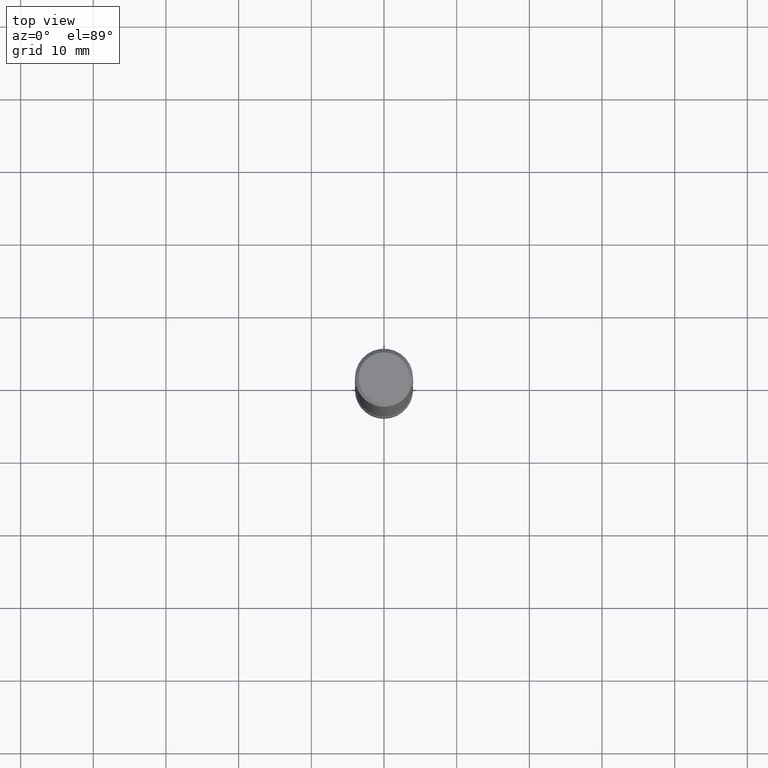
[diagram: clean part render]
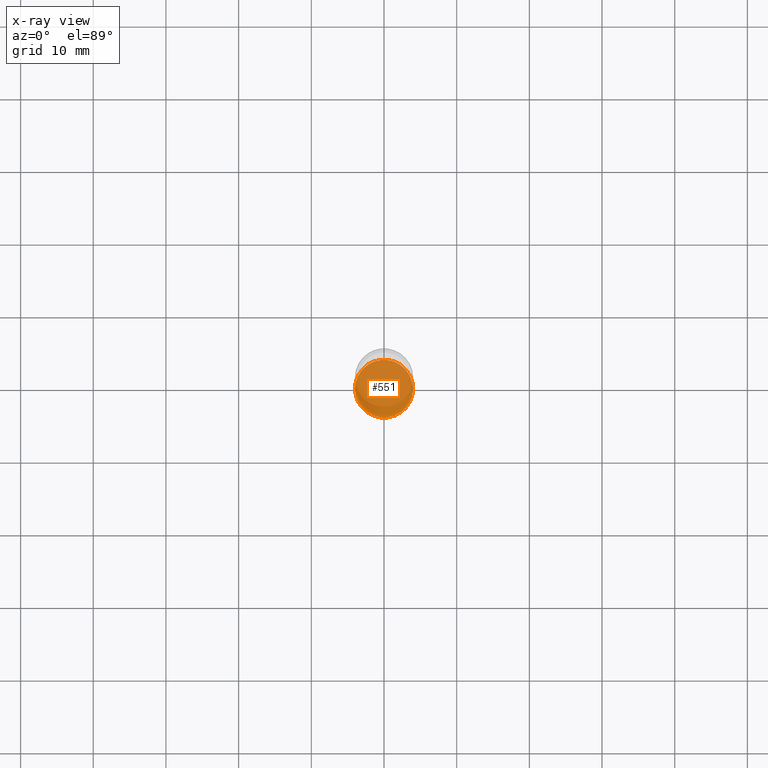
[diagram: x-ray — body ghosted, one internal face saturated and labeled with its STEP entity id]
A machine part, top view, then the same camera in x-ray: the body is ghosted and one INTERNAL B-rep face — a face not visible from any outside direction — is saturated and labeled: STEP entity #551.
In plain terms, the highlighted planar face has unit normal (0, -0, -1).
Its self-contained STEP definition (entity closure, byte-faithful):
#13 = CARTESIAN_POINT ( 'NONE',  ( 8.472571225909024784E-29, -1.209658624655596216E-14, -3.464599999999999902 ) ) ;
#25 = DIRECTION ( 'NONE',  ( -1.000000000000000000, 6.982962677686269866E-15, 0.000000000000000000 ) ) ;
#67 = DIRECTION ( 'NONE',  ( 2.445468806185136597E-29, -3.491481338843145583E-15, -1.000000000000000000 ) ) ;
#94 = CIRCLE ( 'NONE', #494, 0.1569999999999993345 ) ;
#161 = PLANE ( 'NONE',  #296 ) ;
#165 = CARTESIAN_POINT ( 'NONE',  ( 1.096325140396823951E-15, 0.1569999999999872609, -3.464600000000000346 ) ) ;
#200 = VERTEX_POINT ( 'NONE', #322 ) ;
#245 = ORIENTED_EDGE ( 'NONE', *, *, #416, .T. ) ;
#249 = EDGE_CURVE ( 'NONE', #200, #475, #263, .T. ) ;
#263 = CIRCLE ( 'NONE', #336, 0.1569999999999993345 ) ;
#278 = DIRECTION ( 'NONE',  ( 2.445468806185136597E-29, -3.491481338843145583E-15, -1.000000000000000000 ) ) ;
#293 = ORIENTED_EDGE ( 'NONE', *, *, #249, .T. ) ;
#296 = AXIS2_PLACEMENT_3D ( 'NONE', #165, #422, #463 ) ;
#322 = CARTESIAN_POINT ( 'NONE',  ( -0.1569999999999993345, -1.097908788540677166E-14, -3.464599999999999902 ) ) ;
#333 = FACE_OUTER_BOUND ( 'NONE', #473, .T. ) ;
#336 = AXIS2_PLACEMENT_3D ( 'NONE', #13, #67, #408 ) ;
#359 = CARTESIAN_POINT ( 'NONE',  ( 0.1569999999999993345, -1.319355264485483727E-14, -3.464599999999999902 ) ) ;
#408 = DIRECTION ( 'NONE',  ( -1.000000000000000000, 6.982962677686269866E-15, 0.000000000000000000 ) ) ;
#416 = EDGE_CURVE ( 'NONE', #475, #200, #94, .T. ) ;
#422 = DIRECTION ( 'NONE',  ( 2.438088387897960049E-29, -3.491481338843145188E-15, -1.000000000000000000 ) ) ;
#463 = DIRECTION ( 'NONE',  ( -1.000000000000000000, 6.982962677686265922E-15, -4.876176775795935793E-29 ) ) ;
#473 = EDGE_LOOP ( 'NONE', ( #245, #293 ) ) ;
#475 = VERTEX_POINT ( 'NONE', #359 ) ;
#492 = CARTESIAN_POINT ( 'NONE',  ( 8.472571225909024784E-29, -1.209658624655596216E-14, -3.464599999999999902 ) ) ;
#494 = AXIS2_PLACEMENT_3D ( 'NONE', #492, #278, #25 ) ;
#551 = ADVANCED_FACE ( 'NONE', ( #333 ), #161, .T. ) ;